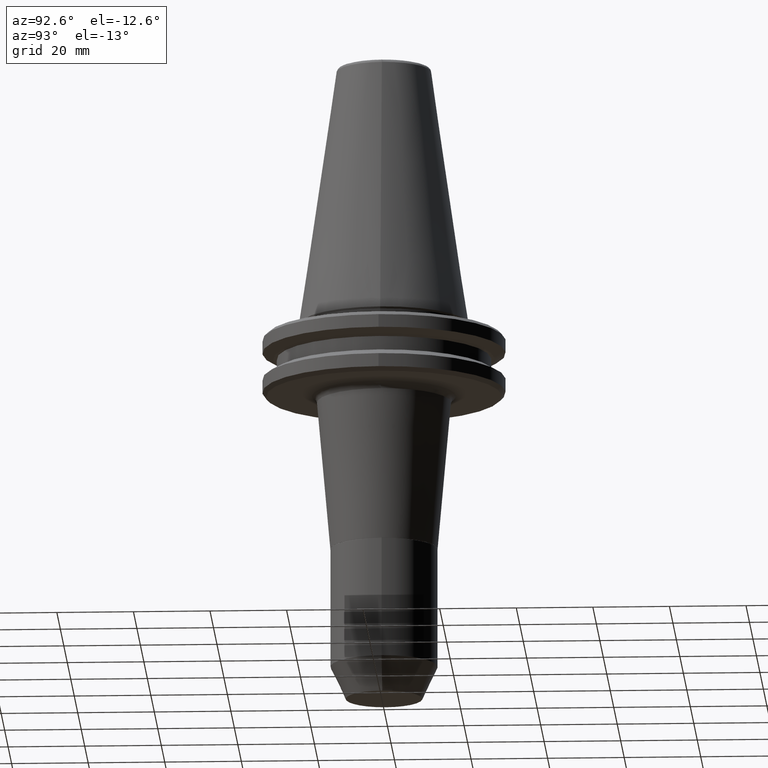
[diagram: clean part render]
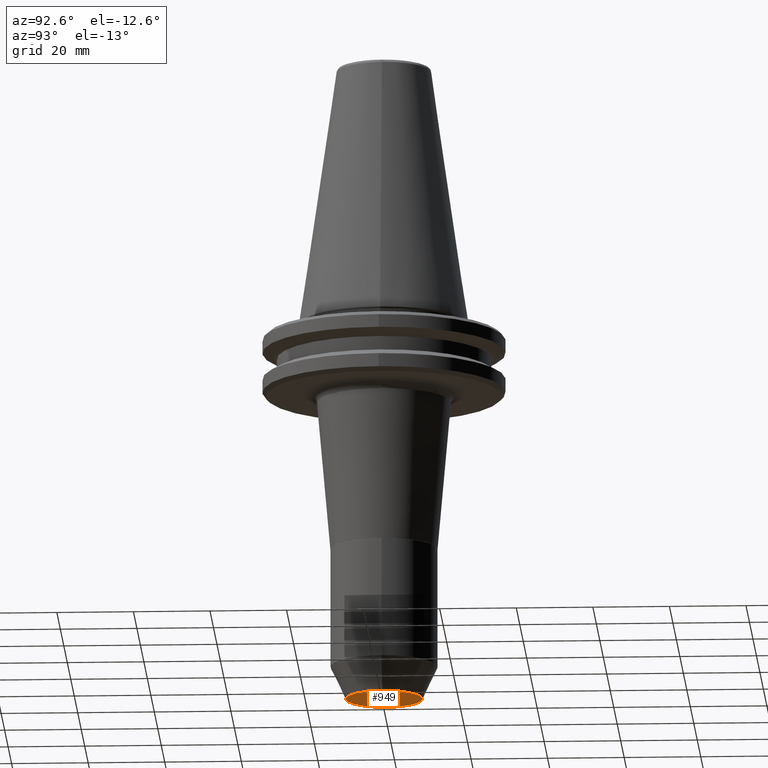
[diagram: same view with one face highlighted and labeled with its STEP entity id]
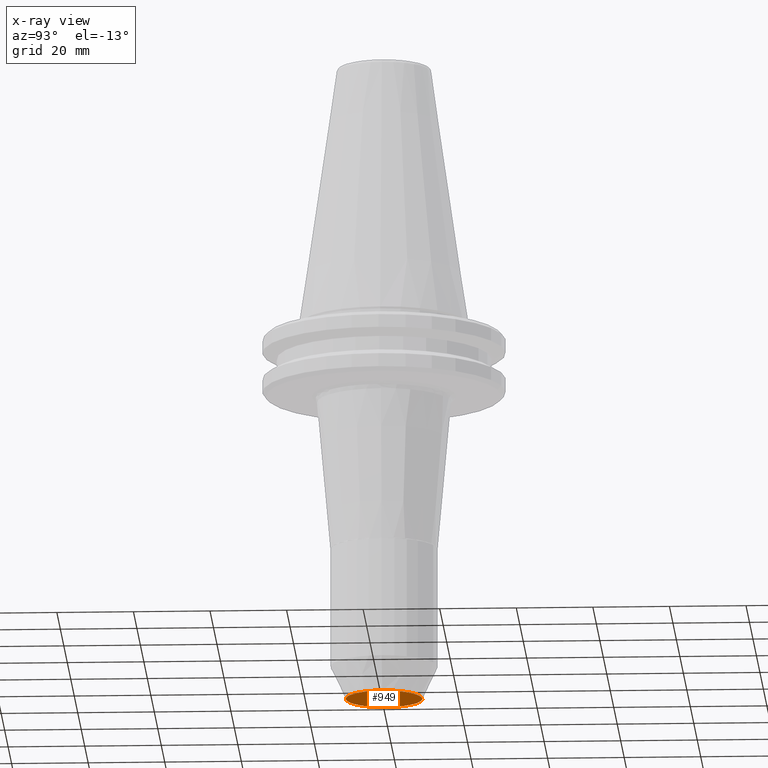
[diagram: x-ray of the same camera — body ghosted, the highlighted face saturated]
A machine part, auxiliary view. The second image highlights one B-rep face of the part: STEP entity #949.
The next image is the same camera in x-ray: the body ghosted, the highlighted face saturated — about 0% of this face is hidden behind the body in this view.
In plain terms, the highlighted planar face has unit normal (0, 0, -1).
Its self-contained STEP definition (entity closure, byte-faithful):
#181 = AXIS2_PLACEMENT_3D ( 'NONE', #496, #495, #493 ) ;
#390 = AXIS2_PLACEMENT_3D ( 'NONE', #997, #1345, #990 ) ;
#493 = DIRECTION ( 'NONE',  ( 1.000000000000000000, 0.0000000000000000000, 0.0000000000000000000 ) ) ;
#495 = DIRECTION ( 'NONE',  ( 0.0000000000000000000, -0.0000000000000000000, 1.000000000000000000 ) ) ;
#496 = CARTESIAN_POINT ( 'NONE',  ( 0.0000000000000000000, 0.0000000000000000000, -99.99999999999997200 ) ) ;
#593 = AXIS2_PLACEMENT_3D ( 'NONE', #627, #626, #625 ) ;
#620 = VERTEX_POINT ( 'NONE', #1279 ) ;
#625 = DIRECTION ( 'NONE',  ( 1.000000000000000000, 0.0000000000000000000, 0.0000000000000000000 ) ) ;
#626 = DIRECTION ( 'NONE',  ( 0.0000000000000000000, -0.0000000000000000000, 1.000000000000000000 ) ) ;
#627 = CARTESIAN_POINT ( 'NONE',  ( 0.0000000000000000000, 0.0000000000000000000, -99.99999999999997200 ) ) ;
#756 = EDGE_LOOP ( 'NONE', ( #830, #819 ) ) ;
#809 = CIRCLE ( 'NONE', #181, 10.00000000000001200 ) ;
#819 = ORIENTED_EDGE ( 'NONE', *, *, #1339, .F. ) ;
#830 = ORIENTED_EDGE ( 'NONE', *, *, #1157, .F. ) ;
#858 = CARTESIAN_POINT ( 'NONE',  ( 10.00000000000001200, 0.0000000000000000000, -99.99999999999997200 ) ) ;
#924 = FACE_OUTER_BOUND ( 'NONE', #756, .T. ) ;
#949 = ADVANCED_FACE ( 'NONE', ( #924 ), #996, .T. ) ;
#990 = DIRECTION ( 'NONE',  ( -1.000000000000000000, 0.0000000000000000000, -0.0000000000000000000 ) ) ;
#996 = PLANE ( 'NONE',  #390 ) ;
#997 = CARTESIAN_POINT ( 'NONE',  ( 10.11999999999999900, -10.11999999999999900, -100.0000000000000000 ) ) ;
#1026 = VERTEX_POINT ( 'NONE', #858 ) ;
#1157 = EDGE_CURVE ( 'NONE', #1026, #620, #1441, .T. ) ;
#1279 = CARTESIAN_POINT ( 'NONE',  ( -10.00000000000001200, 1.469576158976824700E-015, -99.99999999999997200 ) ) ;
#1339 = EDGE_CURVE ( 'NONE', #620, #1026, #809, .T. ) ;
#1345 = DIRECTION ( 'NONE',  ( 0.0000000000000000000, 0.0000000000000000000, -1.000000000000000000 ) ) ;
#1441 = CIRCLE ( 'NONE', #593, 10.00000000000001200 ) ;